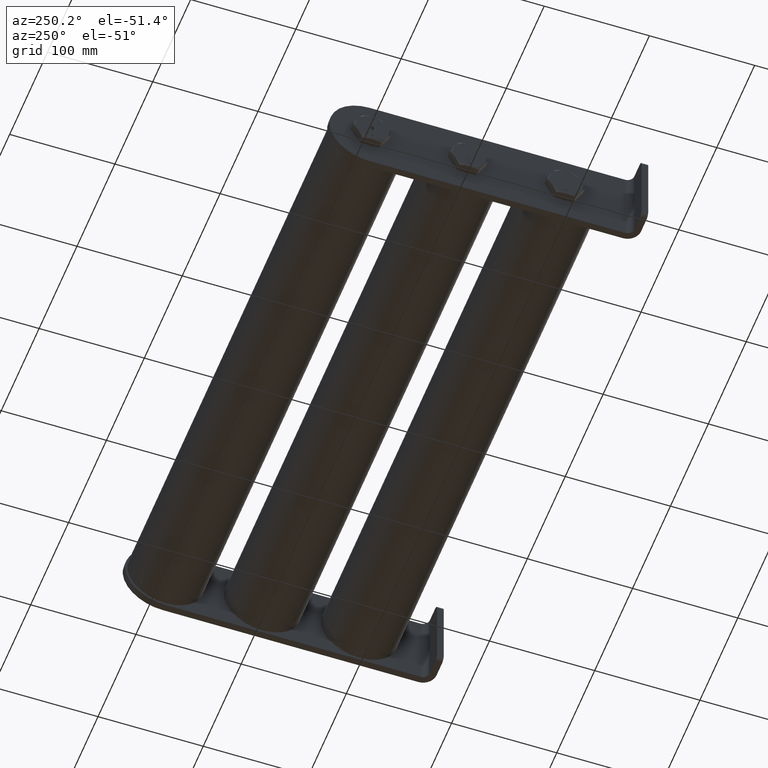
[diagram: clean part render]
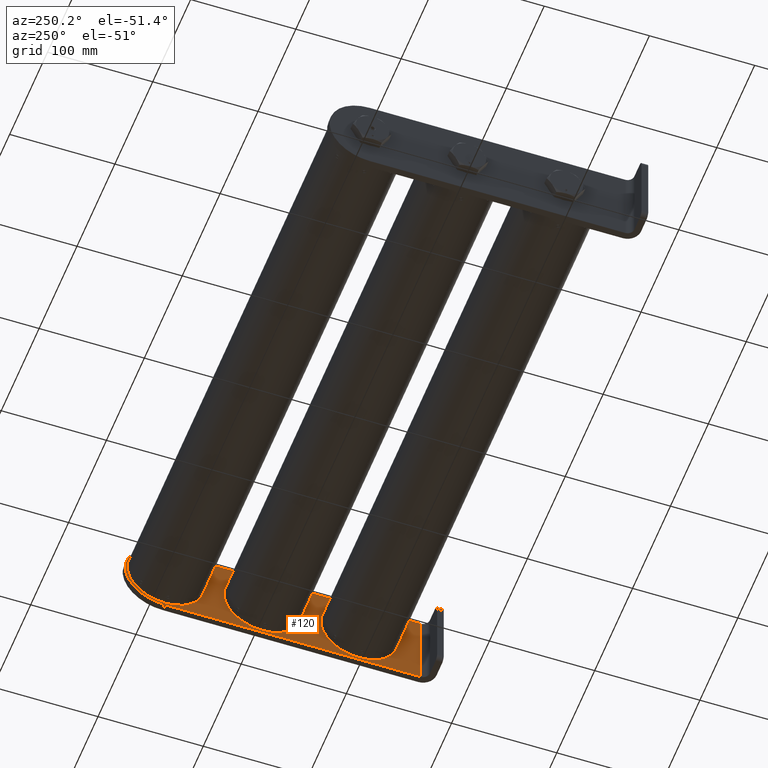
[diagram: same view with one face highlighted and labeled with its STEP entity id]
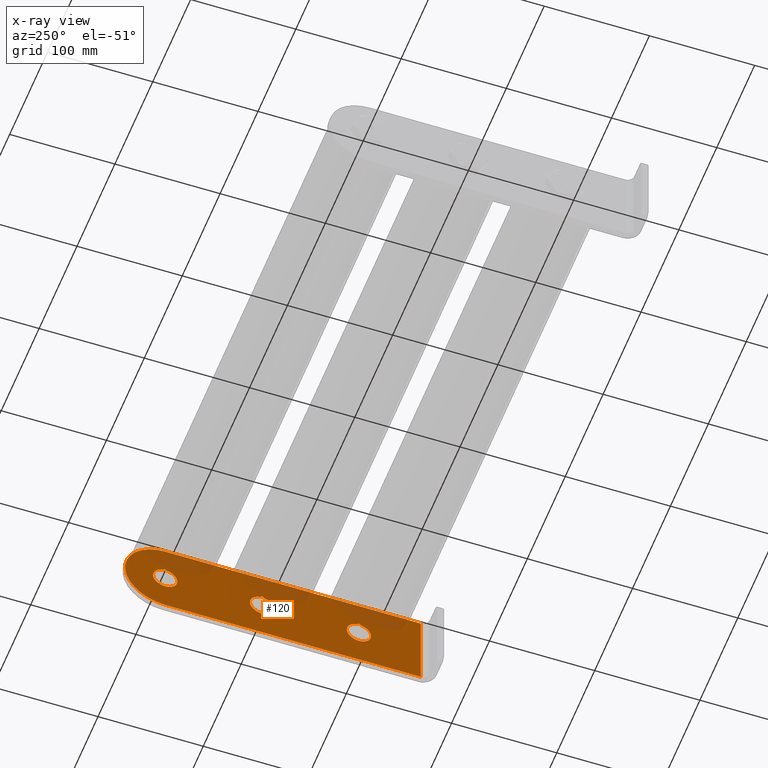
[diagram: x-ray of the same camera — body ghosted, the highlighted face saturated]
A machine part, auxiliary view. The second image highlights one B-rep face of the part: STEP entity #120.
The next image is the same camera in x-ray: the body ghosted, the highlighted face saturated — about 19% of this face is hidden behind the body in this view.
In plain terms, the highlighted planar face has unit normal (1, 0, 0).
Its self-contained STEP definition (entity closure, byte-faithful):
#116 = EDGE_CURVE ( 'NONE', #18120, #2507, #18554, .T. ) ;
#120 = ADVANCED_FACE ( 'NONE', ( #3818, #8991, #10676, #3920 ), #10457, .F. ) ;
#311 = AXIS2_PLACEMENT_3D ( 'NONE', #16451, #8685, #5196 ) ;
#882 = DIRECTION ( 'NONE',  ( -1.000000000000000000, -6.244565049226325974E-17, 0.000000000000000000 ) ) ;
#1003 = CARTESIAN_POINT ( 'NONE',  ( -3.216999999999999638, -2.008876576336108005E-16, 0.000000000000000000 ) ) ;
#1058 = ORIENTED_EDGE ( 'NONE', *, *, #12061, .F. ) ;
#1093 = LINE ( 'NONE', #20156, #13144 ) ;
#1125 = EDGE_CURVE ( 'NONE', #11504, #1879, #1093, .T. ) ;
#1138 = ORIENTED_EDGE ( 'NONE', *, *, #19893, .F. ) ;
#1369 = DIRECTION ( 'NONE',  ( 6.244565049226323508E-17, -1.000000000000000000, 0.000000000000000000 ) ) ;
#1588 = DIRECTION ( 'NONE',  ( -0.000000000000000000, -0.000000000000000000, -1.000000000000000000 ) ) ;
#1763 = CARTESIAN_POINT ( 'NONE',  ( 4.033000000000001251, 6.261408661674741998E-16, 1.500000000000000222 ) ) ;
#1829 = ORIENTED_EDGE ( 'NONE', *, *, #4505, .F. ) ;
#1879 = VERTEX_POINT ( 'NONE', #2631 ) ;
#2086 = VERTEX_POINT ( 'NONE', #19587 ) ;
#2134 = CARTESIAN_POINT ( 'NONE',  ( -3.216999999999999638, -2.008876576336108005E-16, 0.000000000000000000 ) ) ;
#2141 = DIRECTION ( 'NONE',  ( -6.244565049226323508E-17, 1.000000000000000000, 0.000000000000000000 ) ) ;
#2347 = DIRECTION ( 'NONE',  ( -1.000000000000000000, -6.244565049226323508E-17, 0.000000000000000000 ) ) ;
#2468 = DIRECTION ( 'NONE',  ( -1.000000000000000000, -6.244565049226324741E-17, 0.000000000000000000 ) ) ;
#2507 = VERTEX_POINT ( 'NONE', #8793 ) ;
#2542 = EDGE_LOOP ( 'NONE', ( #16183, #15620, #4355, #20074 ) ) ;
#2631 = CARTESIAN_POINT ( 'NONE',  ( 5.529999999999999361, 3.453244472222156942E-16, -0.09482088377568767545 ) ) ;
#2671 = DIRECTION ( 'NONE',  ( 1.000000000000000000, 6.244565049226323508E-17, 0.000000000000000000 ) ) ;
#3067 = EDGE_CURVE ( 'NONE', #11239, #3198, #10097, .T. ) ;
#3198 = VERTEX_POINT ( 'NONE', #14030 ) ;
#3237 = DIRECTION ( 'NONE',  ( 6.244565049226323508E-17, -1.000000000000000000, 0.000000000000000000 ) ) ;
#3712 = CIRCLE ( 'NONE', #6400, 1.499999999999999334 ) ;
#3818 = FACE_BOUND ( 'NONE', #19510, .T. ) ;
#3853 = DIRECTION ( 'NONE',  ( 1.000000000000000000, 6.244565049226325974E-17, 0.000000000000000000 ) ) ;
#3902 = AXIS2_PLACEMENT_3D ( 'NONE', #5724, #15404, #882 ) ;
#3908 = VERTEX_POINT ( 'NONE', #20203 ) ;
#3920 = FACE_BOUND ( 'NONE', #2542, .T. ) ;
#4175 = DIRECTION ( 'NONE',  ( -6.244565049226323508E-17, 1.000000000000000000, 0.000000000000000000 ) ) ;
#4196 = CARTESIAN_POINT ( 'NONE',  ( -5.530000000000000249, -2.048885995248197414E-16, -1.500000000000000222 ) ) ;
#4290 = EDGE_CURVE ( 'NONE', #9242, #3908, #9933, .T. ) ;
#4332 = AXIS2_PLACEMENT_3D ( 'NONE', #16860, #2141, #2347 ) ;
#4355 = ORIENTED_EDGE ( 'NONE', *, *, #10304, .F. ) ;
#4505 = EDGE_CURVE ( 'NONE', #16626, #5710, #6927, .T. ) ;
#4531 = DIRECTION ( 'NONE',  ( -1.000000000000000000, -6.244565049226322276E-17, 0.000000000000000000 ) ) ;
#4723 = AXIS2_PLACEMENT_3D ( 'NONE', #5520, #4175, #11913 ) ;
#4877 = EDGE_CURVE ( 'NONE', #18120, #2086, #13720, .T. ) ;
#4924 = DIRECTION ( 'NONE',  ( 1.000000000000000000, 6.244565049226276670E-17, 0.000000000000000000 ) ) ;
#5147 = VERTEX_POINT ( 'NONE', #13848 ) ;
#5196 = DIRECTION ( 'NONE',  ( -1.000000000000000000, -6.244565049226324741E-17, 0.000000000000000000 ) ) ;
#5470 = DIRECTION ( 'NONE',  ( 1.000000000000000000, 6.244565049226325974E-17, 0.000000000000000000 ) ) ;
#5478 = CARTESIAN_POINT ( 'NONE',  ( 4.033000000000001251, 2.518433084352977094E-16, 0.000000000000000000 ) ) ;
#5520 = CARTESIAN_POINT ( 'NONE',  ( 4.033000000000001251, 2.518433084352977094E-16, 0.000000000000000000 ) ) ;
#5710 = VERTEX_POINT ( 'NONE', #17193 ) ;
#5720 = CARTESIAN_POINT ( 'NONE',  ( -3.154659912888968964, 1.837034672157023435E-16, 0.4486899971461247860 ) ) ;
#5724 = CARTESIAN_POINT ( 'NONE',  ( 4.033000000000001251, 2.518433084352977094E-16, 0.000000000000000000 ) ) ;
#5947 = ORIENTED_EDGE ( 'NONE', *, *, #13112, .F. ) ;
#6218 = VERTEX_POINT ( 'NONE', #10766 ) ;
#6230 = EDGE_CURVE ( 'NONE', #9242, #3198, #20011, .T. ) ;
#6400 = AXIS2_PLACEMENT_3D ( 'NONE', #16844, #10449, #5470 ) ;
#6844 = EDGE_LOOP ( 'NONE', ( #16880, #16889, #9426, #1138 ) ) ;
#6927 = CIRCLE ( 'NONE', #14083, 0.4530000000000004023 ) ;
#7436 = VERTEX_POINT ( 'NONE', #8421 ) ;
#7440 = DIRECTION ( 'NONE',  ( -6.244565049226323508E-17, 1.000000000000000000, 0.000000000000000000 ) ) ;
#7589 = CARTESIAN_POINT ( 'NONE',  ( 5.529999999999999361, 3.453244472222156942E-16, 0.09482088377568767545 ) ) ;
#7653 = DIRECTION ( 'NONE',  ( -1.000000000000000000, -6.244565049226323508E-17, 0.000000000000000000 ) ) ;
#8005 = EDGE_CURVE ( 'NONE', #17162, #1879, #14645, .T. ) ;
#8421 = CARTESIAN_POINT ( 'NONE',  ( 0.3456599128888863670, 3.025523262940540171E-17, 0.4486899971461131842 ) ) ;
#8685 = DIRECTION ( 'NONE',  ( -6.244565049226323508E-17, 1.000000000000000000, 0.000000000000000000 ) ) ;
#8793 = CARTESIAN_POINT ( 'NONE',  ( 4.486000000000000654, 2.801311881082929232E-16, 5.547650000137510070E-17 ) ) ;
#8991 = FACE_OUTER_BOUND ( 'NONE', #9981, .T. ) ;
#9242 = VERTEX_POINT ( 'NONE', #5720 ) ;
#9355 = VECTOR ( 'NONE', #1588, 39.37007874015748143 ) ;
#9426 = ORIENTED_EDGE ( 'NONE', *, *, #3067, .F. ) ;
#9483 = DIRECTION ( 'NONE',  ( 1.000000000000000000, 6.244565049226324741E-17, 0.000000000000000000 ) ) ;
#9516 = DIRECTION ( 'NONE',  ( -6.244565049226323508E-17, 1.000000000000000000, 0.000000000000000000 ) ) ;
#9617 = ORIENTED_EDGE ( 'NONE', *, *, #9837, .T. ) ;
#9837 = EDGE_CURVE ( 'NONE', #17162, #9932, #14502, .T. ) ;
#9932 = VERTEX_POINT ( 'NONE', #4196 ) ;
#9933 = CIRCLE ( 'NONE', #15060, 0.4530000000000003468 ) ;
#9963 = ORIENTED_EDGE ( 'NONE', *, *, #15658, .F. ) ;
#9981 = EDGE_LOOP ( 'NONE', ( #16389, #20654, #9617, #1058, #11841, #9963 ) ) ;
#10097 = CIRCLE ( 'NONE', #311, 0.4530000000000003468 ) ;
#10185 = DIRECTION ( 'NONE',  ( 6.244565049226323508E-17, -1.000000000000000000, 0.000000000000000000 ) ) ;
#10304 = EDGE_CURVE ( 'NONE', #5147, #2086, #14434, .T. ) ;
#10385 = CIRCLE ( 'NONE', #4332, 0.4530000000000004023 ) ;
#10449 = DIRECTION ( 'NONE',  ( 6.244565049226323508E-17, -1.000000000000000000, 0.000000000000000000 ) ) ;
#10457 = PLANE ( 'NONE',  #19894 ) ;
#10676 = FACE_BOUND ( 'NONE', #6844, .T. ) ;
#10713 = AXIS2_PLACEMENT_3D ( 'NONE', #5478, #13791, #20267 ) ;
#10766 = CARTESIAN_POINT ( 'NONE',  ( -0.04499999999999972772, -2.810054272151830295E-18, 0.000000000000000000 ) ) ;
#10915 = LINE ( 'NONE', #19227, #14918 ) ;
#11126 = CIRCLE ( 'NONE', #19942, 0.4530000000000004023 ) ;
#11239 = VERTEX_POINT ( 'NONE', #19620 ) ;
#11399 = CIRCLE ( 'NONE', #16815, 0.06324999999999993128 ) ;
#11503 = CARTESIAN_POINT ( 'NONE',  ( 0.4079999999999614491, 4.097771990496394828E-16, 0.4380000000000137672 ) ) ;
#11504 = VERTEX_POINT ( 'NONE', #7589 ) ;
#11841 = ORIENTED_EDGE ( 'NONE', *, *, #15460, .F. ) ;
#11913 = DIRECTION ( 'NONE',  ( -1.000000000000000000, -6.244565049226325974E-17, 0.000000000000000000 ) ) ;
#12061 = EDGE_CURVE ( 'NONE', #15445, #9932, #19420, .T. ) ;
#12186 = CARTESIAN_POINT ( 'NONE',  ( 0.4703400871110338111, 4.230494252623943620E-16, 0.4486899971461244530 ) ) ;
#12327 = CARTESIAN_POINT ( 'NONE',  ( 0.4080000000000006954, 2.547782540084344212E-17, 0.000000000000000000 ) ) ;
#12432 = DIRECTION ( 'NONE',  ( -6.244565049226323508E-17, 1.000000000000000000, 0.000000000000000000 ) ) ;
#12520 = CARTESIAN_POINT ( 'NONE',  ( -5.530000000000000249, -2.048885995248197414E-16, 1.500000000000000222 ) ) ;
#12599 = AXIS2_PLACEMENT_3D ( 'NONE', #18206, #10185, #3853 ) ;
#13112 = EDGE_CURVE ( 'NONE', #5710, #6218, #10385, .T. ) ;
#13144 = VECTOR ( 'NONE', #18798, 39.37007874015748143 ) ;
#13720 = CIRCLE ( 'NONE', #18832, 0.06324999999999993128 ) ;
#13745 = ORIENTED_EDGE ( 'NONE', *, *, #13963, .F. ) ;
#13791 = DIRECTION ( 'NONE',  ( -6.244565049226323508E-17, 1.000000000000000000, 0.000000000000000000 ) ) ;
#13848 = CARTESIAN_POINT ( 'NONE',  ( 3.580000000000000959, 2.235554287623024462E-16, 0.000000000000000000 ) ) ;
#13882 = CIRCLE ( 'NONE', #4723, 0.4529999999999997917 ) ;
#13963 = EDGE_CURVE ( 'NONE', #6218, #7436, #11126, .T. ) ;
#13984 = CARTESIAN_POINT ( 'NONE',  ( -3.217000000000038717, 1.707404996040164512E-16, 0.4380000000000011107 ) ) ;
#14030 = CARTESIAN_POINT ( 'NONE',  ( -3.279340087111112023, -2.087814668162175066E-16, 0.4486899971461134617 ) ) ;
#14083 = AXIS2_PLACEMENT_3D ( 'NONE', #17637, #9516, #16019 ) ;
#14434 = CIRCLE ( 'NONE', #3902, 0.4529999999999997917 ) ;
#14465 = CARTESIAN_POINT ( 'NONE',  ( 4.033000000000001251, 2.518433084352977094E-16, -1.500000000000000222 ) ) ;
#14502 = LINE ( 'NONE', #16283, #15455 ) ;
#14645 = CIRCLE ( 'NONE', #12599, 1.499999999999999334 ) ;
#14876 = VERTEX_POINT ( 'NONE', #1763 ) ;
#14901 = DIRECTION ( 'NONE',  ( 1.000000000000000000, 6.244565049226372812E-17, 0.000000000000000000 ) ) ;
#14918 = VECTOR ( 'NONE', #17634, 39.37007874015748143 ) ;
#14953 = EDGE_CURVE ( 'NONE', #2507, #5147, #13882, .T. ) ;
#15060 = AXIS2_PLACEMENT_3D ( 'NONE', #1003, #7440, #2468 ) ;
#15287 = AXIS2_PLACEMENT_3D ( 'NONE', #13984, #1369, #9483 ) ;
#15383 = DIRECTION ( 'NONE',  ( -1.000000000000000000, -6.244565049226324741E-17, 0.000000000000000000 ) ) ;
#15385 = CARTESIAN_POINT ( 'NONE',  ( 5.530000000000000249, 7.196220049543921846E-16, 1.500000000000000222 ) ) ;
#15404 = DIRECTION ( 'NONE',  ( -6.244565049226323508E-17, 1.000000000000000000, 0.000000000000000000 ) ) ;
#15445 = VERTEX_POINT ( 'NONE', #12520 ) ;
#15455 = VECTOR ( 'NONE', #4531, 39.37007874015748143 ) ;
#15460 = EDGE_CURVE ( 'NONE', #14876, #15445, #10915, .T. ) ;
#15620 = ORIENTED_EDGE ( 'NONE', *, *, #4877, .T. ) ;
#15658 = EDGE_CURVE ( 'NONE', #11504, #14876, #3712, .T. ) ;
#16019 = DIRECTION ( 'NONE',  ( -1.000000000000000000, -6.244565049226323508E-17, 0.000000000000000000 ) ) ;
#16183 = ORIENTED_EDGE ( 'NONE', *, *, #116, .F. ) ;
#16283 = CARTESIAN_POINT ( 'NONE',  ( 5.530000000000000249, 7.196220049543921846E-16, -1.500000000000000222 ) ) ;
#16389 = ORIENTED_EDGE ( 'NONE', *, *, #1125, .T. ) ;
#16451 = CARTESIAN_POINT ( 'NONE',  ( -3.216999999999999638, -2.008876576336108005E-16, 0.000000000000000000 ) ) ;
#16468 = CARTESIAN_POINT ( 'NONE',  ( 4.095340087111036809, 6.274138516743598056E-16, 0.4486899971461235648 ) ) ;
#16626 = VERTEX_POINT ( 'NONE', #12186 ) ;
#16815 = AXIS2_PLACEMENT_3D ( 'NONE', #11503, #18006, #14901 ) ;
#16844 = CARTESIAN_POINT ( 'NONE',  ( 4.033000000000001251, 2.518433084352977094E-16, 0.000000000000000000 ) ) ;
#16860 = CARTESIAN_POINT ( 'NONE',  ( 0.4080000000000006954, 2.547782540084344212E-17, 0.000000000000000000 ) ) ;
#16880 = ORIENTED_EDGE ( 'NONE', *, *, #4290, .F. ) ;
#16889 = ORIENTED_EDGE ( 'NONE', *, *, #6230, .T. ) ;
#17162 = VERTEX_POINT ( 'NONE', #14465 ) ;
#17193 = CARTESIAN_POINT ( 'NONE',  ( 0.8610000000000009868, 5.376570507383872994E-17, 5.547650000137516850E-17 ) ) ;
#17197 = DIRECTION ( 'NONE',  ( 6.244565049226323508E-17, -1.000000000000000000, 0.000000000000000000 ) ) ;
#17208 = CIRCLE ( 'NONE', #20243, 0.4530000000000003468 ) ;
#17634 = DIRECTION ( 'NONE',  ( -1.000000000000000000, -6.244565049226322276E-17, 0.000000000000000000 ) ) ;
#17637 = CARTESIAN_POINT ( 'NONE',  ( 0.4080000000000006954, 2.547782540084344212E-17, 0.000000000000000000 ) ) ;
#18006 = DIRECTION ( 'NONE',  ( 6.244565049226323508E-17, -1.000000000000000000, 0.000000000000000000 ) ) ;
#18120 = VERTEX_POINT ( 'NONE', #16468 ) ;
#18206 = CARTESIAN_POINT ( 'NONE',  ( 4.033000000000001251, 2.518433084352977094E-16, 0.000000000000000000 ) ) ;
#18554 = CIRCLE ( 'NONE', #10713, 0.4529999999999997917 ) ;
#18786 = EDGE_CURVE ( 'NONE', #16626, #7436, #11399, .T. ) ;
#18798 = DIRECTION ( 'NONE',  ( -0.000000000000000000, -0.000000000000000000, -1.000000000000000000 ) ) ;
#18832 = AXIS2_PLACEMENT_3D ( 'NONE', #19591, #3237, #4924 ) ;
#19079 = ORIENTED_EDGE ( 'NONE', *, *, #18786, .T. ) ;
#19209 = CARTESIAN_POINT ( 'NONE',  ( -5.530000000000000249, -2.048885995248197414E-16, 1.500000000000000222 ) ) ;
#19227 = CARTESIAN_POINT ( 'NONE',  ( 5.530000000000000249, 7.196220049543921846E-16, 1.500000000000000222 ) ) ;
#19420 = LINE ( 'NONE', #19209, #9355 ) ;
#19510 = EDGE_LOOP ( 'NONE', ( #1829, #19079, #13745, #5947 ) ) ;
#19587 = CARTESIAN_POINT ( 'NONE',  ( 3.970659912888883536, 2.692919320750282361E-16, 0.4486899971461121295 ) ) ;
#19591 = CARTESIAN_POINT ( 'NONE',  ( 4.032999999999961283, 6.146657985744592735E-16, 0.4380000000000264238 ) ) ;
#19620 = CARTESIAN_POINT ( 'NONE',  ( -3.669999999999999929, -2.291755373066060883E-16, 0.000000000000000000 ) ) ;
#19893 = EDGE_CURVE ( 'NONE', #3908, #11239, #17208, .T. ) ;
#19894 = AXIS2_PLACEMENT_3D ( 'NONE', #15385, #17197, #2671 ) ;
#19942 = AXIS2_PLACEMENT_3D ( 'NONE', #12327, #12432, #7653 ) ;
#20011 = CIRCLE ( 'NONE', #15287, 0.06324999999999993128 ) ;
#20042 = DIRECTION ( 'NONE',  ( -6.244565049226323508E-17, 1.000000000000000000, 0.000000000000000000 ) ) ;
#20074 = ORIENTED_EDGE ( 'NONE', *, *, #14953, .F. ) ;
#20156 = CARTESIAN_POINT ( 'NONE',  ( 5.530000000000000249, 7.196220049543921846E-16, 1.500000000000000222 ) ) ;
#20203 = CARTESIAN_POINT ( 'NONE',  ( -2.763999999999999346, -1.725997779606155373E-16, 5.547650000137516850E-17 ) ) ;
#20243 = AXIS2_PLACEMENT_3D ( 'NONE', #2134, #20042, #15383 ) ;
#20267 = DIRECTION ( 'NONE',  ( -1.000000000000000000, -6.244565049226325974E-17, 0.000000000000000000 ) ) ;
#20654 = ORIENTED_EDGE ( 'NONE', *, *, #8005, .F. ) ;